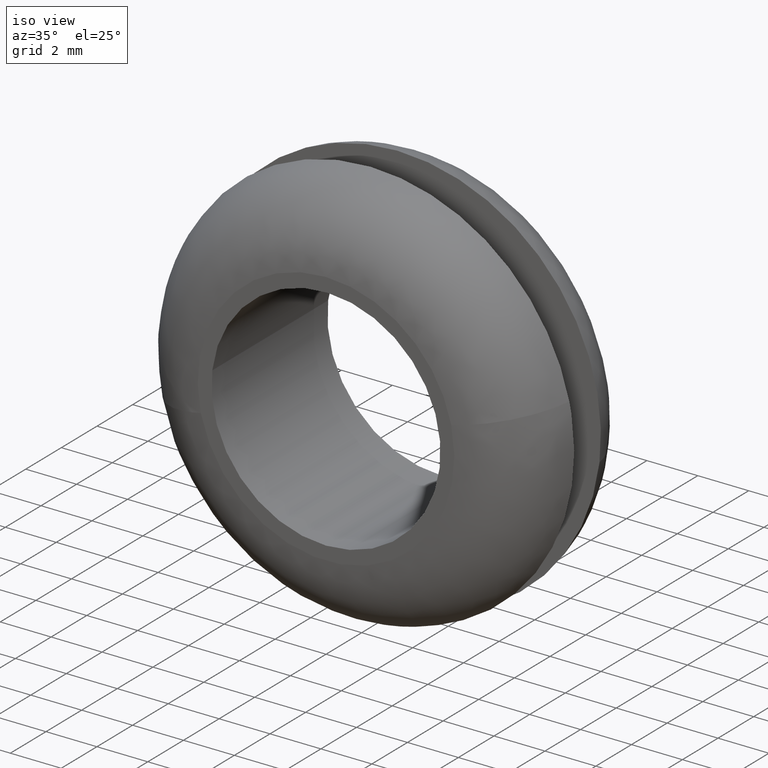
[diagram: clean part render]
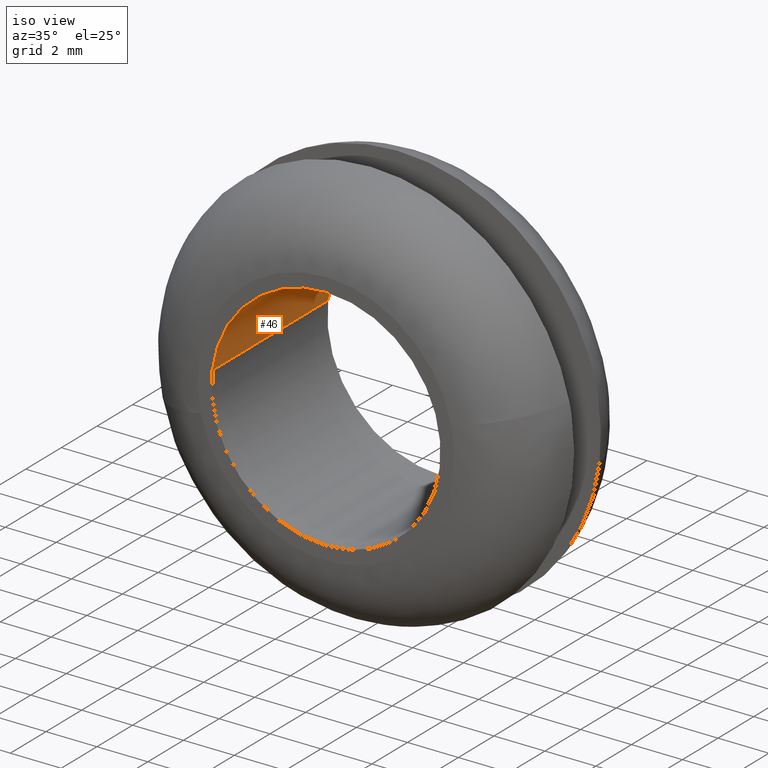
[diagram: same view with one face highlighted and labeled with its STEP entity id]
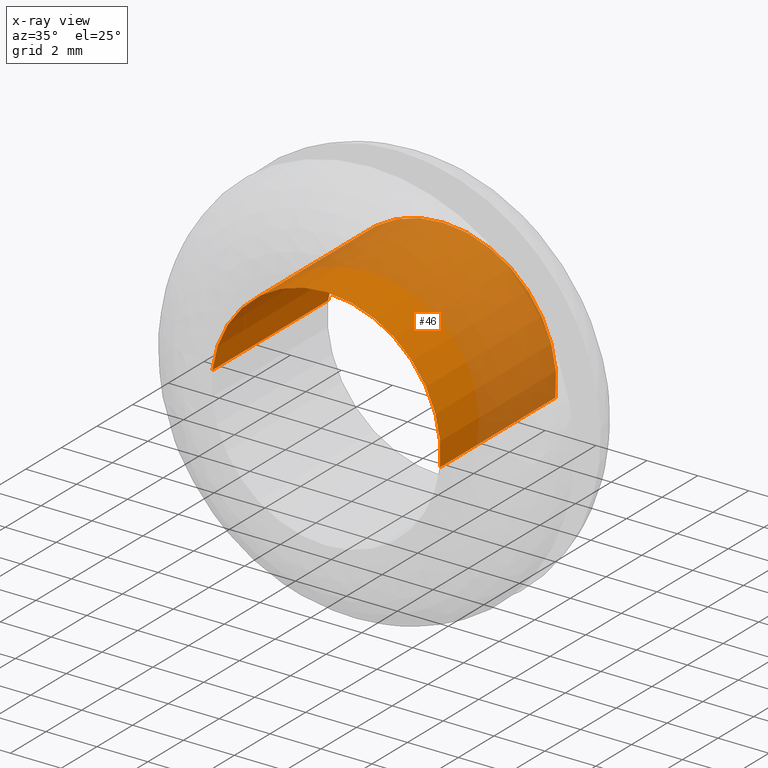
[diagram: x-ray of the same camera — body ghosted, the highlighted face saturated]
A machine part, iso view. The second image highlights one B-rep face of the part: STEP entity #46.
The next image is the same camera in x-ray: the body ghosted, the highlighted face saturated — about 59% of this face is hidden behind the body in this view.
In plain terms, the highlighted cylindrical surface (partial cylindrical patch) has radius 4.5 mm, axis along (-0, 1, -0).
Its self-contained STEP definition (entity closure, byte-faithful):
#46=ADVANCED_FACE('',(#117),#116,.F.);
#116=CYLINDRICAL_SURFACE('',#213,4.50000000000E+000);
#117=FACE_OUTER_BOUND('',#214,.T.);
#210=CARTESIAN_POINT('',(-3.48595419141E-016,6.66250000000E+000,-7.89650400714E-015));
#211=DIRECTION('',(-1.70677333352E-016,1.00000000000E+000,-2.27197397273E-015));
#212=DIRECTION('',(-9.93009526364E-001,9.86864910778E-017,1.18034234657E-001));
#213=AXIS2_PLACEMENT_3D('',#210,#211,#212);
#214=EDGE_LOOP('',(#362,#363,#364,#365));
#362=ORIENTED_EDGE('',*,*,#422,.T.);
#363=ORIENTED_EDGE('',*,*,#426,.T.);
#364=ORIENTED_EDGE('',*,*,#408,.F.);
#365=ORIENTED_EDGE('',*,*,#427,.F.);
#408=EDGE_CURVE('',#510,#517,#518,.T.);
#422=EDGE_CURVE('',#615,#607,#616,.T.);
#426=EDGE_CURVE('',#607,#517,#640,.T.);
#427=EDGE_CURVE('',#615,#510,#646,.T.);
#510=VERTEX_POINT('',#732);
#517=VERTEX_POINT('',#737);
#518=CIRCLE('',#741,4.50000000000E+000);
#607=VERTEX_POINT('',#801);
#615=VERTEX_POINT('',#807);
#616=CIRCLE('',#811,4.50000000000E+000);
#640=(BOUNDED_CURVE() B_SPLINE_CURVE(1,(#820,#821),.UNSPECIFIED.,.F.,.F.) B_SPLINE_CURVE_WITH_KNOTS((2,2),(8.33333347523E-002,9.16666664312E-001),.UNSPECIFIED.) CURVE() GEOMETRIC_REPRESENTATION_ITEM() RATIONAL_B_SPLINE_CURVE((1.00000000000E+000,1.00000000000E+000)) REPRESENTATION_ITEM('') );
#646=(BOUNDED_CURVE() B_SPLINE_CURVE(1,(#822,#823),.UNSPECIFIED.,.F.,.F.) B_SPLINE_CURVE_WITH_KNOTS((2,2),(8.33333333333E-002,9.16666666664E-001),.UNSPECIFIED.) CURVE() GEOMETRIC_REPRESENTATION_ITEM() RATIONAL_B_SPLINE_CURVE((7.50000000000E-001,7.50000000000E-001)) REPRESENTATION_ITEM('') );
#732=CARTESIAN_POINT('',(4.46845099908E+000,6.50000000000E+000,-5.31926375409E-001));
#737=CARTESIAN_POINT('',(-4.46854306288E+000,6.50000000000E+000,5.31152421835E-001));
#738=CARTESIAN_POINT('',(2.77111666946E-013,6.50000000000E+000,6.13287198803E-013));
#739=DIRECTION('',(3.02527720978E-013,-1.00000000000E+000,2.03344308640E-012));
#740=DIRECTION('',(-6.16728890179E-014,-2.03344308640E-012,-1.00000000000E+000));
#741=AXIS2_PLACEMENT_3D('',#738,#739,#740);
#801=CARTESIAN_POINT('',(-4.46854306288E+000,-1.05054214667E-015,5.31152421835E-001));
#807=CARTESIAN_POINT('',(4.46845099908E+000,-9.38924916242E-016,-5.31926375409E-001));
#808=CARTESIAN_POINT('',(2.77111666946E-013,-9.94569773634E-016,6.13287198803E-013));
#809=DIRECTION('',(6.19502093115E-017,-1.00000000000E+000,4.15803065092E-016));
#810=DIRECTION('',(-6.16728890179E-014,-4.15803065092E-016,-1.00000000000E+000));
#811=AXIS2_PLACEMENT_3D('',#808,#809,#810);
#820=CARTESIAN_POINT('',(-4.46854286864E+000,1.10681172005E-008,5.31154055955E-001));
#821=CARTESIAN_POINT('',(-4.46854286864E+000,6.49999998165E+000,5.31154055955E-001));
#822=CARTESIAN_POINT('',(4.46854286864E+000,-1.25825276124E-015,-5.31154055955E-001));
#823=CARTESIAN_POINT('',(4.46854286864E+000,6.50000000000E+000,-5.31154055955E-001));